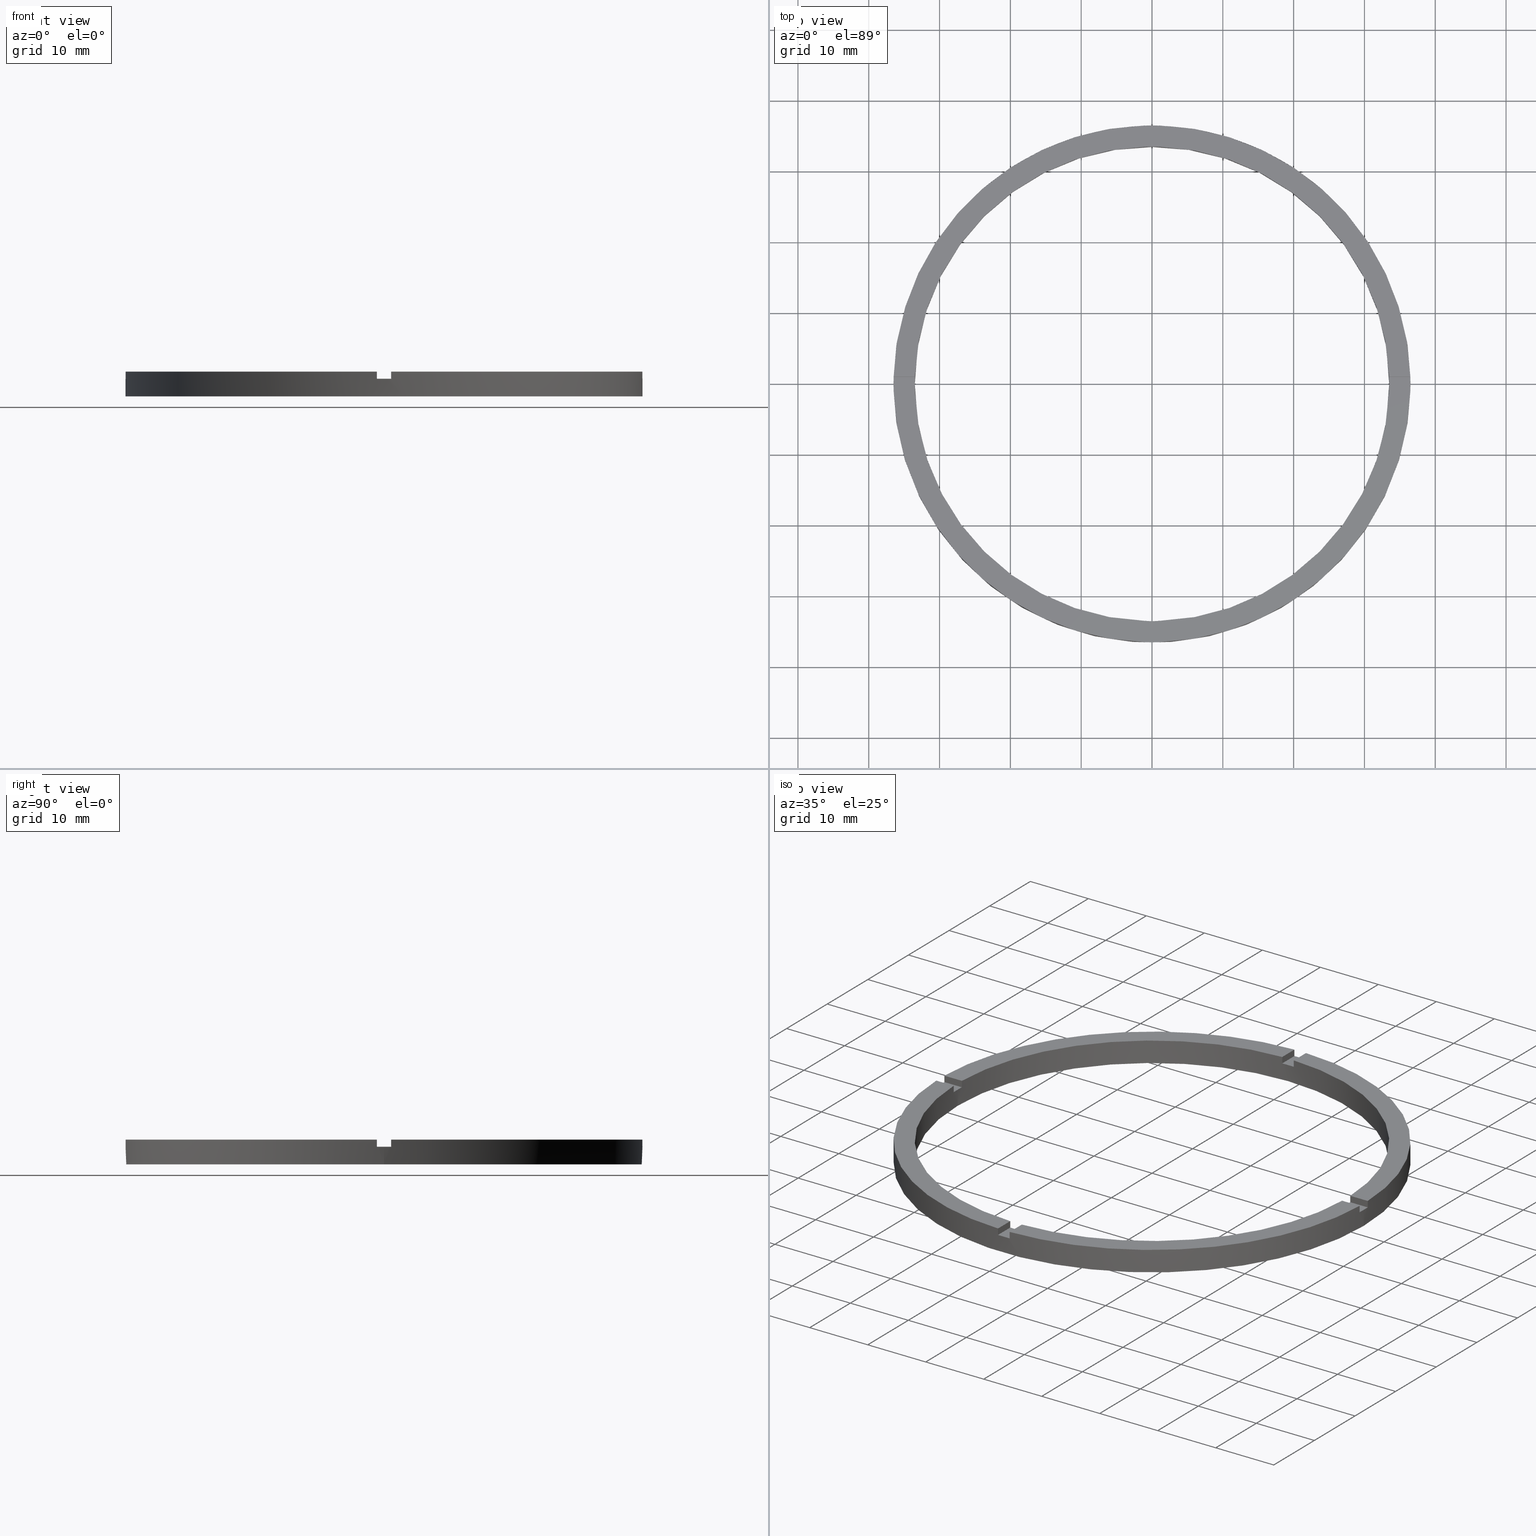
[diagram: canonical four-view strip — front | top / right | iso, engineering-drawing reading convention]
A machine part, canonical four-view strip (front | top / right | iso — engineering-drawing reading convention). The complete STEP part file that produces these views, byte-faithful:
ISO-10303-21;
HEADER;
FILE_DESCRIPTION (( 'STEP AP203' ),
    '1' );
FILE_NAME ('514151.step',
    '2024-12-26T02:42:28',
    ( 'MSI' ),
    ( '' ),
    'SwSTEP 2.0',
    'SolidWorks 2020',
    '' );
FILE_SCHEMA (( 'CONFIG_CONTROL_DESIGN' ));
ENDSEC;

DATA;
#1 = EDGE_LOOP ( 'NONE', ( #404, #175, #655, #636 ) ) ;
#2 = CARTESIAN_POINT ( 'NONE',  ( 0.000000000000000000, 0.000000000000000000, 3.500000000000000000 ) ) ;
#3 = VERTEX_POINT ( 'NONE', #468 ) ;
#4 = EDGE_CURVE ( 'NONE', #120, #640, #110, .T. ) ;
#5 = CC_DESIGN_APPROVAL ( #291, ( #672 ) ) ;
#6 = EDGE_CURVE ( 'NONE', #155, #274, #370, .T. ) ;
#7 = ORIENTED_EDGE ( 'NONE', *, *, #436, .F. ) ;
#8 = VERTEX_POINT ( 'NONE', #79 ) ;
#9 = EDGE_LOOP ( 'NONE', ( #516, #496, #498, #127 ) ) ;
#10 = PLANE ( 'NONE',  #589 ) ;
#11 = VERTEX_POINT ( 'NONE', #29 ) ;
#12 = AXIS2_PLACEMENT_3D ( 'NONE', #181, #567, #645 ) ;
#13 = DIRECTION ( 'NONE',  ( 1.000000000000000000, 0.000000000000000000, 0.000000000000000000 ) ) ;
#14 = ORIENTED_EDGE ( 'NONE', *, *, #393, .F. ) ;
#15 = ORIENTED_EDGE ( 'NONE', *, *, #722, .T. ) ;
#16 = EDGE_LOOP ( 'NONE', ( #431, #126, #638, #614 ) ) ;
#17 = CARTESIAN_POINT ( 'NONE',  ( 36.50000000000000000, 4.469960816887838430E-15, 2.500000000000000000 ) ) ;
#18 = ORIENTED_EDGE ( 'NONE', *, *, #322, .T. ) ;
#19 = CARTESIAN_POINT ( 'NONE',  ( 0.000000000000000000, 0.000000000000000000, 2.500000000000000000 ) ) ;
#20 = CARTESIAN_POINT ( 'NONE',  ( -26.50000000000018474, -1.000000000000025313, 2.500000000000000000 ) ) ;
#21 = AXIS2_PLACEMENT_3D ( 'NONE', #97, #594, #628 ) ;
#22 = CARTESIAN_POINT ( 'NONE',  ( 33.48507130050644065, -1.000000000000157874, 2.500000000000000000 ) ) ;
#23 = DIRECTION ( 'NONE',  ( 1.000000000000000000, -0.000000000000000000, 0.000000000000000000 ) ) ;
#24 = DIRECTION ( 'NONE',  ( -1.000000000000000000, -6.505213034913025371E-17, -0.000000000000000000 ) ) ;
#25 = AXIS2_PLACEMENT_3D ( 'NONE', #667, #234, #545 ) ;
#26 = CARTESIAN_POINT ( 'NONE',  ( -26.50000000000018474, 0.9999999999999746869, 2.500000000000000000 ) ) ;
#27 = DIRECTION ( 'NONE',  ( 0.000000000000000000, 0.000000000000000000, 1.000000000000000000 ) ) ;
#28 = CARTESIAN_POINT ( 'NONE',  ( -1.000000000000025091, 33.48507130050644065, 2.500000000000000000 ) ) ;
#29 = CARTESIAN_POINT ( 'NONE',  ( -33.50000000000000000, 0.000000000000000000, 2.500000000000000000 ) ) ;
#30 = AXIS2_PLACEMENT_3D ( 'NONE', #152, #579, #150 ) ;
#31 = DIRECTION ( 'NONE',  ( -0.000000000000000000, -0.000000000000000000, -1.000000000000000000 ) ) ;
#32 = DIRECTION ( 'NONE',  ( 0.000000000000000000, -0.000000000000000000, 1.000000000000000000 ) ) ;
#33 = ADVANCED_FACE ( 'NONE', ( #362 ), #81, .T. ) ;
#34 = DIRECTION ( 'NONE',  ( 0.000000000000000000, 0.000000000000000000, 1.000000000000000000 ) ) ;
#35 = EDGE_CURVE ( 'NONE', #629, #782, #618, .T. ) ;
#36 = EDGE_CURVE ( 'NONE', #422, #3, #96, .T. ) ;
#37 = CARTESIAN_POINT ( 'NONE',  ( 0.000000000000000000, 0.000000000000000000, 2.500000000000000000 ) ) ;
#38 = CARTESIAN_POINT ( 'NONE',  ( 36.48629879831606360, 0.9999999999998423483, 3.500000000000000000 ) ) ;
#39 = DIRECTION ( 'NONE',  ( -0.000000000000000000, -0.000000000000000000, -1.000000000000000000 ) ) ;
#40 = CARTESIAN_POINT ( 'NONE',  ( 0.000000000000000000, 0.000000000000000000, 2.500000000000000000 ) ) ;
#41 = EDGE_CURVE ( 'NONE', #493, #378, #603, .T. ) ;
#42 = ADVANCED_FACE ( 'NONE', ( #621 ), #515, .F. ) ;
#43 = CARTESIAN_POINT ( 'NONE',  ( 0.000000000000000000, 0.000000000000000000, 3.500000000000000000 ) ) ;
#44 = CARTESIAN_POINT ( 'NONE',  ( 0.9999999999998400169, -36.48629879831606360, 3.500000000000000000 ) ) ;
#45 = DIRECTION ( 'NONE',  ( 1.000000000000000000, 0.000000000000000000, -0.000000000000000000 ) ) ;
#46 = DIRECTION ( 'NONE',  ( 0.000000000000000000, 0.000000000000000000, 1.000000000000000000 ) ) ;
#47 = DIRECTION ( 'NONE',  ( -1.301042606982605074E-16, 1.000000000000000000, -0.000000000000000000 ) ) ;
#48 = FACE_OUTER_BOUND ( 'NONE', #648, .T. ) ;
#49 = DIRECTION ( 'NONE',  ( 0.000000000000000000, 0.000000000000000000, 1.000000000000000000 ) ) ;
#50 = VECTOR ( 'NONE', #24, 1000.000000000000000 ) ;
#51 = AXIS2_PLACEMENT_3D ( 'NONE', #734, #57, #553 ) ;
#52 = CIRCLE ( 'NONE', #355, 33.50000000000000000 ) ;
#53 = FACE_OUTER_BOUND ( 'NONE', #381, .T. ) ;
#54 = CYLINDRICAL_SURFACE ( 'NONE', #286, 33.50000000000000000 ) ;
#55 = AXIS2_PLACEMENT_3D ( 'NONE', #357, #781, #561 ) ;
#56 = LINE ( 'NONE', #507, #330 ) ;
#57 = DIRECTION ( 'NONE',  ( 6.505213034913025371E-17, -1.000000000000000000, 0.000000000000000000 ) ) ;
#58 = LINE ( 'NONE', #754, #80 ) ;
#59 = VECTOR ( 'NONE', #173, 1000.000000000000000 ) ;
#60 = LINE ( 'NONE', #306, #329 ) ;
#61 = DIRECTION ( 'NONE',  ( 0.000000000000000000, 0.000000000000000000, 1.000000000000000000 ) ) ;
#62 = EDGE_CURVE ( 'NONE', #382, #163, #605, .T. ) ;
#63 = DIRECTION ( 'NONE',  ( -1.000000000000000000, -1.301042606982605074E-16, 0.000000000000000000 ) ) ;
#64 = LINE ( 'NONE', #592, #323 ) ;
#65 = PERSON_AND_ORGANIZATION_ROLE ( 'design_owner' ) ;
#66 = VECTOR ( 'NONE', #705, 1000.000000000000000 ) ;
#67 = DIRECTION ( 'NONE',  ( -1.301042606982605074E-16, 1.000000000000000000, 0.000000000000000000 ) ) ;
#68 = DIRECTION ( 'NONE',  ( 1.000000000000000000, 0.000000000000000000, 0.000000000000000000 ) ) ;
#69 = FACE_OUTER_BOUND ( 'NONE', #538, .T. ) ;
#70 = LINE ( 'NONE', #678, #593 ) ;
#71 = FACE_BOUND ( 'NONE', #625, .T. ) ;
#72 = LINE ( 'NONE', #708, #586 ) ;
#73 = CARTESIAN_POINT ( 'NONE',  ( 0.9999999999999749090, 33.48507130050644776, 3.500000000000000000 ) ) ;
#74 = VERTEX_POINT ( 'NONE', #255 ) ;
#75 = CARTESIAN_POINT ( 'NONE',  ( -1.000000000000160094, -36.48629879831604939, 3.500000000000000000 ) ) ;
#76 = AXIS2_PLACEMENT_3D ( 'NONE', #289, #130, #340 ) ;
#77 = LINE ( 'NONE', #164, #66 ) ;
#78 = FACE_OUTER_BOUND ( 'NONE', #261, .T. ) ;
#79 = CARTESIAN_POINT ( 'NONE',  ( 33.50000000000000000, 4.102566777143633774E-15, 0.000000000000000000 ) ) ;
#80 = VECTOR ( 'NONE', #463, 1000.000000000000000 ) ;
#81 = CYLINDRICAL_SURFACE ( 'NONE', #12, 36.50000000000000000 ) ;
#82 = EDGE_CURVE ( 'NONE', #666, #493, #104, .T. ) ;
#83 = CIRCLE ( 'NONE', #500, 36.50000000000000000 ) ;
#84 = DIRECTION ( 'NONE',  ( 0.000000000000000000, 0.000000000000000000, 1.000000000000000000 ) ) ;
#85 = DIRECTION ( 'NONE',  ( -0.000000000000000000, -0.000000000000000000, -1.000000000000000000 ) ) ;
#86 = CYLINDRICAL_SURFACE ( 'NONE', #717, 33.50000000000000000 ) ;
#87 = CIRCLE ( 'NONE', #221, 33.50000000000000000 ) ;
#88 = CARTESIAN_POINT ( 'NONE',  ( -36.48629879831605649, -1.000000000000027311, 2.500000000000000000 ) ) ;
#89 = LINE ( 'NONE', #669, #356 ) ;
#90 = ADVANCED_FACE ( 'NONE', ( #128 ), #315, .F. ) ;
#91 = LINE ( 'NONE', #336, #354 ) ;
#92 = CARTESIAN_POINT ( 'NONE',  ( 0.9999999999998395728, -33.48507130050644776, 3.500000000000000000 ) ) ;
#93 = LINE ( 'NONE', #439, #95 ) ;
#94 = VECTOR ( 'NONE', #673, 1000.000000000000000 ) ;
#95 = VECTOR ( 'NONE', #479, 1000.000000000000000 ) ;
#96 = LINE ( 'NONE', #92, #341 ) ;
#97 = CARTESIAN_POINT ( 'NONE',  ( 0.000000000000000000, 0.000000000000000000, 2.500000000000000000 ) ) ;
#98 = DIRECTION ( 'NONE',  ( 1.301042606982605074E-16, -1.000000000000000000, 0.000000000000000000 ) ) ;
#99 = VECTOR ( 'NONE', #227, 1000.000000000000000 ) ;
#100 = ORIENTED_EDGE ( 'NONE', *, *, #316, .F. ) ;
#101 = VECTOR ( 'NONE', #320, 1000.000000000000000 ) ;
#102 = ORIENTED_EDGE ( 'NONE', *, *, #743, .T. ) ;
#103 = ADVANCED_FACE ( 'NONE', ( #78 ), #554, .F. ) ;
#104 = LINE ( 'NONE', #701, #386 ) ;
#105 = ORIENTED_EDGE ( 'NONE', *, *, #82, .F. ) ;
#106 = CIRCLE ( 'NONE', #735, 36.50000000000000000 ) ;
#107 = ORIENTED_EDGE ( 'NONE', *, *, #571, .T. ) ;
#108 = APPROVAL_STATUS ( 'not_yet_approved' ) ;
#109 = CARTESIAN_POINT ( 'NONE',  ( -26.50000000000018474, 0.9999999999999746869, 3.500000000000000000 ) ) ;
#110 = LINE ( 'NONE', #417, #99 ) ;
#111 = ORIENTED_EDGE ( 'NONE', *, *, #418, .T. ) ;
#112 = VECTOR ( 'NONE', #85, 1000.000000000000000 ) ;
#113 = ORIENTED_EDGE ( 'NONE', *, *, #183, .T. ) ;
#114 = LINE ( 'NONE', #541, #94 ) ;
#115 = ORIENTED_EDGE ( 'NONE', *, *, #661, .T. ) ;
#116 = DIRECTION ( 'NONE',  ( 1.000000000000000000, 0.000000000000000000, -0.000000000000000000 ) ) ;
#117 = AXIS2_PLACEMENT_3D ( 'NONE', #435, #32, #575 ) ;
#118 = CC_DESIGN_APPROVAL ( #596, ( #457 ) ) ;
#119 = ORIENTED_EDGE ( 'NONE', *, *, #418, .F. ) ;
#120 = VERTEX_POINT ( 'NONE', #304 ) ;
#121 = DIRECTION ( 'NONE',  ( 0.000000000000000000, 0.000000000000000000, 1.000000000000000000 ) ) ;
#122 = VECTOR ( 'NONE', #410, 1000.000000000000000 ) ;
#123 = ORIENTED_EDGE ( 'NONE', *, *, #263, .T. ) ;
#124 = EDGE_CURVE ( 'NONE', #74, #382, #391, .T. ) ;
#125 = CC_DESIGN_PERSON_AND_ORGANIZATION_ASSIGNMENT ( #220, #530, ( #672 ) ) ;
#126 = ORIENTED_EDGE ( 'NONE', *, *, #292, .T. ) ;
#127 = ORIENTED_EDGE ( 'NONE', *, *, #710, .F. ) ;
#128 = FACE_OUTER_BOUND ( 'NONE', #1, .T. ) ;
#129 = ORIENTED_EDGE ( 'NONE', *, *, #137, .F. ) ;
#130 = DIRECTION ( 'NONE',  ( -6.505213034913025371E-17, 1.000000000000000000, 0.000000000000000000 ) ) ;
#131 = VERTEX_POINT ( 'NONE', #22 ) ;
#132 = VERTEX_POINT ( 'NONE', #730 ) ;
#133 = DIRECTION ( 'NONE',  ( -1.000000000000000000, -1.951563910473907735E-16, 0.000000000000000000 ) ) ;
#134 = VECTOR ( 'NONE', #742, 1000.000000000000000 ) ;
#135 = CARTESIAN_POINT ( 'NONE',  ( 0.000000000000000000, 0.000000000000000000, 3.500000000000000000 ) ) ;
#136 = VECTOR ( 'NONE', #133, 1000.000000000000000 ) ;
#137 = EDGE_CURVE ( 'NONE', #282, #640, #635, .T. ) ;
#138 = DIRECTION ( 'NONE',  ( 0.000000000000000000, 0.000000000000000000, 1.000000000000000000 ) ) ;
#139 = LINE ( 'NONE', #109, #136 ) ;
#140 = EDGE_LOOP ( 'NONE', ( #441, #264, #111, #375, #177, #449, #689, #100, #518, #180, #776, #145 ) ) ;
#141 = CARTESIAN_POINT ( 'NONE',  ( -36.48629879831605649, -1.000000000000027311, 3.500000000000000000 ) ) ;
#142 = ADVANCED_FACE ( 'NONE', ( #344 ), #413, .T. ) ;
#143 = VERTEX_POINT ( 'NONE', #388 ) ;
#144 = EDGE_LOOP ( 'NONE', ( #686, #156, #438, #421 ) ) ;
#145 = ORIENTED_EDGE ( 'NONE', *, *, #170, .T. ) ;
#146 = CARTESIAN_POINT ( 'NONE',  ( 36.48629879831604939, -1.000000000000157652, 3.500000000000000000 ) ) ;
#147 = CARTESIAN_POINT ( 'NONE',  ( 0.000000000000000000, 0.000000000000000000, 2.500000000000000000 ) ) ;
#148 = ORIENTED_EDGE ( 'NONE', *, *, #467, .T. ) ;
#149 =( GEOMETRIC_REPRESENTATION_CONTEXT ( 3 ) GLOBAL_UNCERTAINTY_ASSIGNED_CONTEXT ( ( #568 ) ) GLOBAL_UNIT_ASSIGNED_CONTEXT ( ( #469, #172, #560 ) ) REPRESENTATION_CONTEXT ( 'NONE', 'WORKASPACE' ) );
#150 = DIRECTION ( 'NONE',  ( 1.000000000000000000, 0.000000000000000000, -0.000000000000000000 ) ) ;
#151 = DIRECTION ( 'NONE',  ( 0.000000000000000000, 0.000000000000000000, 1.000000000000000000 ) ) ;
#152 = CARTESIAN_POINT ( 'NONE',  ( 0.000000000000000000, 0.000000000000000000, 3.500000000000000000 ) ) ;
#153 = DESIGN_CONTEXT ( 'detailed design', #401, 'design' ) ;
#154 = CARTESIAN_POINT ( 'NONE',  ( 0.000000000000000000, 0.000000000000000000, 0.000000000000000000 ) ) ;
#155 = VERTEX_POINT ( 'NONE', #265 ) ;
#156 = ORIENTED_EDGE ( 'NONE', *, *, #702, .T. ) ;
#157 = DIRECTION ( 'NONE',  ( 1.000000000000000000, 0.000000000000000000, 0.000000000000000000 ) ) ;
#158 = CARTESIAN_POINT ( 'NONE',  ( 33.50000000000000000, 4.102566777143633774E-15, 2.500000000000000000 ) ) ;
#159 = AXIS2_PLACEMENT_3D ( 'NONE', #514, #706, #641 ) ;
#160 = CARTESIAN_POINT ( 'NONE',  ( 0.000000000000000000, 0.000000000000000000, 2.500000000000000000 ) ) ;
#161 = FACE_OUTER_BOUND ( 'NONE', #403, .T. ) ;
#162 = CARTESIAN_POINT ( 'NONE',  ( 0.000000000000000000, 0.000000000000000000, 0.000000000000000000 ) ) ;
#163 = VERTEX_POINT ( 'NONE', #302 ) ;
#164 = CARTESIAN_POINT ( 'NONE',  ( 36.50000000000000000, 4.469960816887838430E-15, 3.500000000000000000 ) ) ;
#165 = CARTESIAN_POINT ( 'NONE',  ( 0.000000000000000000, 0.000000000000000000, 3.500000000000000000 ) ) ;
#166 = DIRECTION ( 'NONE',  ( 1.000000000000000000, 0.000000000000000000, -0.000000000000000000 ) ) ;
#167 = APPROVAL ( #312, 'δָ��' ) ;
#168 = VECTOR ( 'NONE', #577, 1000.000000000000000 ) ;
#169 = LINE ( 'NONE', #217, #168 ) ;
#170 = EDGE_CURVE ( 'NONE', #640, #282, #106, .T. ) ;
#171 = VECTOR ( 'NONE', #664, 1000.000000000000000 ) ;
#172 =( NAMED_UNIT ( * ) PLANE_ANGLE_UNIT ( ) SI_UNIT ( $, .RADIAN. ) );
#173 = DIRECTION ( 'NONE',  ( 0.000000000000000000, 0.000000000000000000, 1.000000000000000000 ) ) ;
#174 = LINE ( 'NONE', #300, #440 ) ;
#175 = ORIENTED_EDGE ( 'NONE', *, *, #41, .T. ) ;
#176 = CARTESIAN_POINT ( 'NONE',  ( 0.000000000000000000, 0.000000000000000000, 2.500000000000000000 ) ) ;
#177 = ORIENTED_EDGE ( 'NONE', *, *, #195, .T. ) ;
#178 = CARTESIAN_POINT ( 'NONE',  ( 0.000000000000000000, 0.000000000000000000, 2.500000000000000000 ) ) ;
#179 = EDGE_CURVE ( 'NONE', #271, #358, #626, .T. ) ;
#180 = ORIENTED_EDGE ( 'NONE', *, *, #275, .F. ) ;
#181 = CARTESIAN_POINT ( 'NONE',  ( 0.000000000000000000, 0.000000000000000000, 3.500000000000000000 ) ) ;
#182 = ORIENTED_EDGE ( 'NONE', *, *, #467, .F. ) ;
#183 = EDGE_CURVE ( 'NONE', #448, #358, #348, .T. ) ;
#184 = ORIENTED_EDGE ( 'NONE', *, *, #327, .T. ) ;
#185 = CARTESIAN_POINT ( 'NONE',  ( 0.9999999999999749090, 36.48629879831605649, 2.500000000000000000 ) ) ;
#186 = ORIENTED_EDGE ( 'NONE', *, *, #317, .T. ) ;
#187 = ORIENTED_EDGE ( 'NONE', *, *, #36, .T. ) ;
#188 = ORIENTED_EDGE ( 'NONE', *, *, #208, .T. ) ;
#189 = EDGE_LOOP ( 'NONE', ( #447, #695, #741, #451, #696, #617, #364, #18, #453, #647, #272, #398 ) ) ;
#190 = PLANE ( 'NONE',  #305 ) ;
#191 = ORIENTED_EDGE ( 'NONE', *, *, #137, .T. ) ;
#192 = ADVANCED_FACE ( 'NONE', ( #389 ), #429, .T. ) ;
#193 = AXIS2_PLACEMENT_3D ( 'NONE', #698, #313, #67 ) ;
#194 = ORIENTED_EDGE ( 'NONE', *, *, #4, .F. ) ;
#195 = EDGE_CURVE ( 'NONE', #527, #163, #606, .T. ) ;
#196 = PLANE ( 'NONE',  #193 ) ;
#197 = AXIS2_PLACEMENT_3D ( 'NONE', #154, #599, #680 ) ;
#198 = CARTESIAN_POINT ( 'NONE',  ( 0.9999999999999749090, 33.48507130050644776, 3.500000000000000000 ) ) ;
#199 = DIRECTION ( 'NONE',  ( 0.000000000000000000, 0.000000000000000000, 1.000000000000000000 ) ) ;
#200 = AXIS2_PLACEMENT_3D ( 'NONE', #281, #138, #45 ) ;
#201 = CARTESIAN_POINT ( 'NONE',  ( -33.48507130050644065, -1.000000000000026645, 2.500000000000000000 ) ) ;
#202 = CC_DESIGN_APPROVAL ( #167, ( #736 ) ) ;
#203 = CARTESIAN_POINT ( 'NONE',  ( -33.48507130050644776, 0.9999999999999733546, 3.500000000000000000 ) ) ;
#204 = DIRECTION ( 'NONE',  ( 0.000000000000000000, 0.000000000000000000, 1.000000000000000000 ) ) ;
#205 = EDGE_CURVE ( 'NONE', #412, #608, #83, .T. ) ;
#206 = EDGE_CURVE ( 'NONE', #11, #543, #349, .T. ) ;
#207 = DIRECTION ( 'NONE',  ( 1.000000000000000000, 0.000000000000000000, 0.000000000000000000 ) ) ;
#208 = EDGE_CURVE ( 'NONE', #274, #358, #114, .T. ) ;
#209 = EDGE_CURVE ( 'NONE', #238, #8, #87, .T. ) ;
#210 = CARTESIAN_POINT ( 'NONE',  ( 0.000000000000000000, 0.000000000000000000, 3.500000000000000000 ) ) ;
#211 = MANIFOLD_SOLID_BREP ( '�г�-����1', #241 ) ;
#212 = CARTESIAN_POINT ( 'NONE',  ( -26.50000000000018474, 0.9999999999999746869, 2.500000000000000000 ) ) ;
#213 = DIRECTION ( 'NONE',  ( 0.000000000000000000, 0.000000000000000000, 1.000000000000000000 ) ) ;
#214 = AXIS2_PLACEMENT_3D ( 'NONE', #216, #739, #513 ) ;
#215 = DIRECTION ( 'NONE',  ( 0.000000000000000000, 0.000000000000000000, 1.000000000000000000 ) ) ;
#216 = CARTESIAN_POINT ( 'NONE',  ( 0.000000000000000000, 0.000000000000000000, 3.500000000000000000 ) ) ;
#217 = CARTESIAN_POINT ( 'NONE',  ( 36.48629879831604939, -1.000000000000157652, 3.500000000000000000 ) ) ;
#218 = DIRECTION ( 'NONE',  ( 1.301042606982605074E-16, -1.000000000000000000, 0.000000000000000000 ) ) ;
#219 = CARTESIAN_POINT ( 'NONE',  ( -1.000000000000025091, 36.48629879831605649, 3.500000000000000000 ) ) ;
#220 = PERSON_AND_ORGANIZATION ( #464, #251 ) ;
#221 = AXIS2_PLACEMENT_3D ( 'NONE', #573, #425, #715 ) ;
#222 = DIRECTION ( 'NONE',  ( -0.000000000000000000, -0.000000000000000000, -1.000000000000000000 ) ) ;
#223 = PLANE ( 'NONE',  #200 ) ;
#224 = PERSON_AND_ORGANIZATION ( #464, #251 ) ;
#225 = AXIS2_PLACEMENT_3D ( 'NONE', #248, #445, #68 ) ;
#226 = COORDINATED_UNIVERSAL_TIME_OFFSET ( 8, 0, .AHEAD. ) ;
#227 = DIRECTION ( 'NONE',  ( -0.000000000000000000, -0.000000000000000000, -1.000000000000000000 ) ) ;
#228 = APPROVAL_STATUS ( 'not_yet_approved' ) ;
#229 = CARTESIAN_POINT ( 'NONE',  ( 0.000000000000000000, 0.000000000000000000, 2.500000000000000000 ) ) ;
#230 = ADVANCED_FACE ( 'NONE', ( #610 ), #190, .T. ) ;
#231 = CC_DESIGN_PERSON_AND_ORGANIZATION_ASSIGNMENT ( #728, #535, ( #457 ) ) ;
#232 = EDGE_CURVE ( 'NONE', #540, #279, #91, .T. ) ;
#233 = PERSON_AND_ORGANIZATION_ROLE ( 'creator' ) ;
#234 = DIRECTION ( 'NONE',  ( 0.000000000000000000, 0.000000000000000000, 1.000000000000000000 ) ) ;
#235 = DATE_AND_TIME ( #745, #237 ) ;
#236 = PLANE ( 'NONE',  #76 ) ;
#237 = LOCAL_TIME ( 10, 42, 28.00000000000000000, #226 ) ;
#238 = VERTEX_POINT ( 'NONE', #531 ) ;
#239 = DATE_AND_TIME ( #499, #487 ) ;
#240 = CARTESIAN_POINT ( 'NONE',  ( -1.000000000000160094, -36.48629879831604939, 3.500000000000000000 ) ) ;
#241 = CLOSED_SHELL ( 'NONE', ( #582, #350, #572, #363, #566, #276, #709, #33, #471, #774, #765, #142, #654, #42, #192, #649, #103, #719, #90, #757, #230 ) ) ;
#242 = APPROVAL_PERSON_ORGANIZATION ( #224, #596, #332 ) ;
#243 = ORIENTED_EDGE ( 'NONE', *, *, #766, .F. ) ;
#244 = EDGE_CURVE ( 'NONE', #666, #771, #380, .T. ) ;
#245 = EDGE_CURVE ( 'NONE', #422, #132, #426, .T. ) ;
#246 = SHAPE_DEFINITION_REPRESENTATION ( #396, #443 ) ;
#247 = DIRECTION ( 'NONE',  ( 1.000000000000000000, 0.000000000000000000, 0.000000000000000000 ) ) ;
#248 = CARTESIAN_POINT ( 'NONE',  ( 0.000000000000000000, 0.000000000000000000, 2.500000000000000000 ) ) ;
#249 = APPROVAL_DATE_TIME ( #239, #291 ) ;
#250 = CARTESIAN_POINT ( 'NONE',  ( -33.48507130050644065, -1.000000000000026645, 3.500000000000000000 ) ) ;
#251 = ORGANIZATION ( 'δָ��', 'δָ��', '' ) ;
#252 = DIRECTION ( 'NONE',  ( 0.000000000000000000, 0.000000000000000000, 1.000000000000000000 ) ) ;
#253 = CARTESIAN_POINT ( 'NONE',  ( 0.000000000000000000, 0.000000000000000000, 0.000000000000000000 ) ) ;
#254 = CARTESIAN_POINT ( 'NONE',  ( -1.000000000000025091, 26.49999999999999645, 2.500000000000000000 ) ) ;
#255 = CARTESIAN_POINT ( 'NONE',  ( -1.000000000000160538, -33.48507130050644065, 2.500000000000000000 ) ) ;
#256 = DIRECTION ( 'NONE',  ( 1.000000000000000000, 0.000000000000000000, 0.000000000000000000 ) ) ;
#257 = ORIENTED_EDGE ( 'NONE', *, *, #522, .F. ) ;
#258 = AXIS2_PLACEMENT_3D ( 'NONE', #229, #478, #662 ) ;
#259 = CARTESIAN_POINT ( 'NONE',  ( 0.000000000000000000, 0.000000000000000000, 3.500000000000000000 ) ) ;
#260 = EDGE_CURVE ( 'NONE', #274, #377, #416, .T. ) ;
#261 = EDGE_LOOP ( 'NONE', ( #182, #107, #186, #119 ) ) ;
#262 = DIRECTION ( 'NONE',  ( 1.000000000000000000, 0.000000000000000000, -0.000000000000000000 ) ) ;
#263 = EDGE_CURVE ( 'NONE', #627, #771, #139, .T. ) ;
#264 = ORIENTED_EDGE ( 'NONE', *, *, #205, .F. ) ;
#265 = CARTESIAN_POINT ( 'NONE',  ( 0.9999999999999749090, 33.48507130050644776, 2.500000000000000000 ) ) ;
#266 = EDGE_CURVE ( 'NONE', #369, #424, #419, .T. ) ;
#267 = ORIENTED_EDGE ( 'NONE', *, *, #209, .T. ) ;
#268 = DIRECTION ( 'NONE',  ( -1.951563910473907735E-16, 1.000000000000000000, 0.000000000000000000 ) ) ;
#269 = EDGE_LOOP ( 'NONE', ( #769, #129 ) ) ;
#270 = DIRECTION ( 'NONE',  ( -0.000000000000000000, -0.000000000000000000, -1.000000000000000000 ) ) ;
#271 = VERTEX_POINT ( 'NONE', #198 ) ;
#272 = ORIENTED_EDGE ( 'NONE', *, *, #716, .T. ) ;
#273 = DIRECTION ( 'NONE',  ( 1.000000000000000000, 1.951563910473907735E-16, 0.000000000000000000 ) ) ;
#274 = VERTEX_POINT ( 'NONE', #185 ) ;
#275 = EDGE_CURVE ( 'NONE', #120, #392, #670, .T. ) ;
#276 = ADVANCED_FACE ( 'NONE', ( #161 ), #223, .T. ) ;
#277 = ORIENTED_EDGE ( 'NONE', *, *, #232, .T. ) ;
#278 = CARTESIAN_POINT ( 'NONE',  ( -1.000000000000025091, 33.48507130050644065, 3.500000000000000000 ) ) ;
#279 = VERTEX_POINT ( 'NONE', #250 ) ;
#280 = CARTESIAN_POINT ( 'NONE',  ( 0.000000000000000000, 0.000000000000000000, 0.000000000000000000 ) ) ;
#281 = CARTESIAN_POINT ( 'NONE',  ( 0.000000000000000000, 0.000000000000000000, 3.500000000000000000 ) ) ;
#282 = VERTEX_POINT ( 'NONE', #297 ) ;
#283 = CARTESIAN_POINT ( 'NONE',  ( 36.48629879831604939, -1.000000000000157652, 2.500000000000000000 ) ) ;
#284 = VERTEX_POINT ( 'NONE', #146 ) ;
#285 = SECURITY_CLASSIFICATION_LEVEL ( 'unclassified' ) ;
#286 = AXIS2_PLACEMENT_3D ( 'NONE', #259, #770, #383 ) ;
#287 = CARTESIAN_POINT ( 'NONE',  ( 0.9999999999998400169, -36.48629879831606360, 3.500000000000000000 ) ) ;
#288 = CC_DESIGN_PERSON_AND_ORGANIZATION_ASSIGNMENT ( #755, #65, ( #325 ) ) ;
#289 = CARTESIAN_POINT ( 'NONE',  ( 26.49999999999998934, 0.9999999999998416822, 2.500000000000000000 ) ) ;
#290 = EDGE_CURVE ( 'NONE', #623, #627, #395, .T. ) ;
#291 = APPROVAL ( #108, 'δָ��' ) ;
#292 = EDGE_CURVE ( 'NONE', #377, #378, #681, .T. ) ;
#293 = CARTESIAN_POINT ( 'NONE',  ( 0.000000000000000000, 0.000000000000000000, 3.500000000000000000 ) ) ;
#294 = DIRECTION ( 'NONE',  ( 1.000000000000000000, 0.000000000000000000, 0.000000000000000000 ) ) ;
#295 = AXIS2_PLACEMENT_3D ( 'NONE', #462, #63, #218 ) ;
#296 = DIRECTION ( 'NONE',  ( 1.000000000000000000, 6.505213034913025371E-17, 0.000000000000000000 ) ) ;
#297 = CARTESIAN_POINT ( 'NONE',  ( 36.50000000000000000, 4.469960816887838430E-15, 0.000000000000000000 ) ) ;
#298 = DIRECTION ( 'NONE',  ( 0.000000000000000000, 0.000000000000000000, 1.000000000000000000 ) ) ;
#299 = CARTESIAN_POINT ( 'NONE',  ( 0.9999999999999749090, 26.49999999999999645, 2.500000000000000000 ) ) ;
#300 = CARTESIAN_POINT ( 'NONE',  ( 26.49999999999998934, -1.000000000000158318, 3.500000000000000000 ) ) ;
#301 = AXIS2_PLACEMENT_3D ( 'NONE', #210, #84, #506 ) ;
#302 = CARTESIAN_POINT ( 'NONE',  ( 0.9999999999998400169, -36.48629879831606360, 2.500000000000000000 ) ) ;
#303 = CARTESIAN_POINT ( 'NONE',  ( 0.000000000000000000, 0.000000000000000000, 2.500000000000000000 ) ) ;
#304 = CARTESIAN_POINT ( 'NONE',  ( -36.50000000000000000, 0.000000000000000000, 2.500000000000000000 ) ) ;
#305 = AXIS2_PLACEMENT_3D ( 'NONE', #475, #473, #581 ) ;
#306 = CARTESIAN_POINT ( 'NONE',  ( -26.50000000000018474, -1.000000000000025313, 2.500000000000000000 ) ) ;
#307 = CARTESIAN_POINT ( 'NONE',  ( 0.9999999999999749090, 26.49999999999999645, 3.500000000000000000 ) ) ;
#308 = AXIS2_PLACEMENT_3D ( 'NONE', #147, #204, #256 ) ;
#309 = APPLICATION_PROTOCOL_DEFINITION ( 'international standard', 'config_control_design', 1994, #517 ) ;
#310 = CARTESIAN_POINT ( 'NONE',  ( 0.000000000000000000, 0.000000000000000000, 0.000000000000000000 ) ) ;
#311 = CC_DESIGN_PERSON_AND_ORGANIZATION_ASSIGNMENT ( #477, #233, ( #736 ) ) ;
#312 = APPROVAL_STATUS ( 'not_yet_approved' ) ;
#313 = DIRECTION ( 'NONE',  ( 1.000000000000000000, 1.301042606982605074E-16, 0.000000000000000000 ) ) ;
#314 = DIRECTION ( 'NONE',  ( -1.000000000000000000, 0.000000000000000000, 0.000000000000000000 ) ) ;
#315 = PLANE ( 'NONE',  #539 ) ;
#316 = EDGE_CURVE ( 'NONE', #540, #424, #675, .T. ) ;
#317 = EDGE_CURVE ( 'NONE', #132, #284, #174, .T. ) ;
#318 = DIRECTION ( 'NONE',  ( -0.000000000000000000, -0.000000000000000000, -1.000000000000000000 ) ) ;
#319 = FACE_OUTER_BOUND ( 'NONE', #600, .T. ) ;
#320 = DIRECTION ( 'NONE',  ( -0.000000000000000000, -0.000000000000000000, -1.000000000000000000 ) ) ;
#321 = CIRCLE ( 'NONE', #214, 36.50000000000000000 ) ;
#322 = EDGE_CURVE ( 'NONE', #493, #627, #677, .T. ) ;
#323 = VECTOR ( 'NONE', #298, 1000.000000000000000 ) ;
#324 = CARTESIAN_POINT ( 'NONE',  ( -1.000000000000025091, 36.48629879831605649, 3.500000000000000000 ) ) ;
#325 = PRODUCT ( '514151', '514151', '', ( #524 ) ) ;
#326 = VECTOR ( 'NONE', #31, 1000.000000000000000 ) ;
#327 = EDGE_CURVE ( 'NONE', #527, #422, #685, .T. ) ;
#328 = CARTESIAN_POINT ( 'NONE',  ( 0.9999999999999749090, 26.49999999999999645, 2.500000000000000000 ) ) ;
#329 = VECTOR ( 'NONE', #556, 1000.000000000000000 ) ;
#330 = VECTOR ( 'NONE', #558, 1000.000000000000000 ) ;
#331 = CIRCLE ( 'NONE', #21, 33.50000000000000000 ) ;
#332 = APPROVAL_ROLE ( '' ) ;
#333 = AXIS2_PLACEMENT_3D ( 'NONE', #569, #732, #262 ) ;
#334 = FACE_OUTER_BOUND ( 'NONE', #372, .T. ) ;
#335 = APPROVAL_ROLE ( '' ) ;
#336 = CARTESIAN_POINT ( 'NONE',  ( -26.50000000000018474, -1.000000000000025313, 3.500000000000000000 ) ) ;
#337 = LINE ( 'NONE', #324, #598 ) ;
#338 = FACE_OUTER_BOUND ( 'NONE', #760, .T. ) ;
#339 = CIRCLE ( 'NONE', #301, 33.50000000000000000 ) ;
#340 = DIRECTION ( 'NONE',  ( -1.000000000000000000, -6.505213034913025371E-17, 0.000000000000000000 ) ) ;
#341 = VECTOR ( 'NONE', #222, 1000.000000000000000 ) ;
#342 = CIRCLE ( 'NONE', #308, 36.50000000000000000 ) ;
#343 = DIRECTION ( 'NONE',  ( 1.000000000000000000, 0.000000000000000000, 0.000000000000000000 ) ) ;
#344 = FACE_OUTER_BOUND ( 'NONE', #529, .T. ) ;
#345 = LINE ( 'NONE', #704, #326 ) ;
#346 = CARTESIAN_POINT ( 'NONE',  ( -36.48629879831605649, -1.000000000000027311, 3.500000000000000000 ) ) ;
#347 = AXIS2_PLACEMENT_3D ( 'NONE', #293, #34, #294 ) ;
#348 = CIRCLE ( 'NONE', #414, 36.50000000000000000 ) ;
#349 = CIRCLE ( 'NONE', #644, 33.50000000000000000 ) ;
#350 = ADVANCED_FACE ( 'NONE', ( #430 ), #682, .T. ) ;
#351 = ORIENTED_EDGE ( 'NONE', *, *, #716, .F. ) ;
#352 = LINE ( 'NONE', #368, #613 ) ;
#353 = DIRECTION ( 'NONE',  ( 0.000000000000000000, 0.000000000000000000, 1.000000000000000000 ) ) ;
#354 = VECTOR ( 'NONE', #525, 1000.000000000000000 ) ;
#355 = AXIS2_PLACEMENT_3D ( 'NONE', #2, #252, #456 ) ;
#356 = VECTOR ( 'NONE', #296, 1000.000000000000000 ) ;
#357 = CARTESIAN_POINT ( 'NONE',  ( 0.000000000000000000, 0.000000000000000000, 2.500000000000000000 ) ) ;
#358 = VERTEX_POINT ( 'NONE', #718 ) ;
#359 = LINE ( 'NONE', #583, #122 ) ;
#360 = ORIENTED_EDGE ( 'NONE', *, *, #601, .T. ) ;
#361 = ORIENTED_EDGE ( 'NONE', *, *, #266, .T. ) ;
#362 = FACE_OUTER_BOUND ( 'NONE', #140, .T. ) ;
#363 = ADVANCED_FACE ( 'NONE', ( #428 ), #773, .T. ) ;
#364 = ORIENTED_EDGE ( 'NONE', *, *, #41, .F. ) ;
#365 = DIRECTION ( 'NONE',  ( 0.000000000000000000, 0.000000000000000000, 1.000000000000000000 ) ) ;
#366 = ORIENTED_EDGE ( 'NONE', *, *, #36, .F. ) ;
#367 = ORIENTED_EDGE ( 'NONE', *, *, #245, .T. ) ;
#368 = CARTESIAN_POINT ( 'NONE',  ( 0.9999999999998386846, -26.50000000000017764, 2.500000000000000000 ) ) ;
#369 = VERTEX_POINT ( 'NONE', #519 ) ;
#370 = LINE ( 'NONE', #328, #642 ) ;
#371 = DIRECTION ( 'NONE',  ( -1.000000000000000000, -6.505213034913025371E-17, -0.000000000000000000 ) ) ;
#372 = EDGE_LOOP ( 'NONE', ( #277, #526, #384, #7 ) ) ;
#373 = CC_DESIGN_SECURITY_CLASSIFICATION ( #672, ( #457 ) ) ;
#374 = EDGE_CURVE ( 'NONE', #623, #11, #691, .T. ) ;
#375 = ORIENTED_EDGE ( 'NONE', *, *, #660, .F. ) ;
#376 = DIRECTION ( 'NONE',  ( -0.000000000000000000, -1.000000000000000000, -0.000000000000000000 ) ) ;
#377 = VERTEX_POINT ( 'NONE', #536 ) ;
#378 = VERTEX_POINT ( 'NONE', #28 ) ;
#379 = DIRECTION ( 'NONE',  ( 1.000000000000000000, 0.000000000000000000, 0.000000000000000000 ) ) ;
#380 = CIRCLE ( 'NONE', #455, 36.50000000000000000 ) ;
#381 = EDGE_LOOP ( 'NONE', ( #546, #360, #780, #351, #542, #385, #777, #616, #15, #366, #367, #632 ) ) ;
#382 = VERTEX_POINT ( 'NONE', #767 ) ;
#383 = DIRECTION ( 'NONE',  ( -1.000000000000000000, 0.000000000000000000, 0.000000000000000000 ) ) ;
#384 = ORIENTED_EDGE ( 'NONE', *, *, #563, .F. ) ;
#385 = ORIENTED_EDGE ( 'NONE', *, *, #458, .F. ) ;
#386 = VECTOR ( 'NONE', #687, 1000.000000000000000 ) ;
#387 = ORIENTED_EDGE ( 'NONE', *, *, #660, .T. ) ;
#388 = CARTESIAN_POINT ( 'NONE',  ( 33.48507130050644776, 0.9999999999998421263, 3.500000000000000000 ) ) ;
#389 = FACE_OUTER_BOUND ( 'NONE', #639, .T. ) ;
#390 = ORIENTED_EDGE ( 'NONE', *, *, #316, .T. ) ;
#391 = LINE ( 'NONE', #729, #624 ) ;
#392 = VERTEX_POINT ( 'NONE', #88 ) ;
#393 = EDGE_CURVE ( 'NONE', #608, #523, #676, .T. ) ;
#394 = ORIENTED_EDGE ( 'NONE', *, *, #205, .T. ) ;
#395 = LINE ( 'NONE', #203, #399 ) ;
#396 = PRODUCT_DEFINITION_SHAPE ( 'NONE', 'NONE',  #736 ) ;
#397 = ORIENTED_EDGE ( 'NONE', *, *, #459, .F. ) ;
#398 = ORIENTED_EDGE ( 'NONE', *, *, #743, .F. ) ;
#399 = VECTOR ( 'NONE', #365, 1000.000000000000000 ) ;
#400 = ORIENTED_EDGE ( 'NONE', *, *, #563, .T. ) ;
#401 = APPLICATION_CONTEXT ( 'configuration controlled 3d designs of mechanical parts and assemblies' ) ;
#402 = CARTESIAN_POINT ( 'NONE',  ( 33.50000000000000000, 4.102566777143633774E-15, 3.500000000000000000 ) ) ;
#403 = EDGE_LOOP ( 'NONE', ( #703, #243, #768, #390 ) ) ;
#404 = ORIENTED_EDGE ( 'NONE', *, *, #82, .T. ) ;
#405 = CARTESIAN_POINT ( 'NONE',  ( 0.000000000000000000, 0.000000000000000000, 3.500000000000000000 ) ) ;
#406 = ORIENTED_EDGE ( 'NONE', *, *, #722, .F. ) ;
#407 = ORIENTED_EDGE ( 'NONE', *, *, #480, .F. ) ;
#408 = APPROVAL_ROLE ( '' ) ;
#409 = CARTESIAN_POINT ( 'NONE',  ( 26.49999999999998934, 0.9999999999998416822, 2.500000000000000000 ) ) ;
#410 = DIRECTION ( 'NONE',  ( 0.000000000000000000, 0.000000000000000000, 1.000000000000000000 ) ) ;
#411 = ORIENTED_EDGE ( 'NONE', *, *, #710, .T. ) ;
#412 = VERTEX_POINT ( 'NONE', #283 ) ;
#413 = PLANE ( 'NONE',  #684 ) ;
#414 = AXIS2_PLACEMENT_3D ( 'NONE', #405, #46, #207 ) ;
#415 = PLANE ( 'NONE',  #762 ) ;
#416 = CIRCLE ( 'NONE', #117, 36.50000000000000000 ) ;
#417 = CARTESIAN_POINT ( 'NONE',  ( -36.50000000000000000, 0.000000000000000000, 3.500000000000000000 ) ) ;
#418 = EDGE_CURVE ( 'NONE', #412, #284, #169, .T. ) ;
#419 = LINE ( 'NONE', #653, #671 ) ;
#420 = DIRECTION ( 'NONE',  ( 1.951563910473907735E-16, -1.000000000000000000, 0.000000000000000000 ) ) ;
#421 = ORIENTED_EDGE ( 'NONE', *, *, #208, .F. ) ;
#422 = VERTEX_POINT ( 'NONE', #481 ) ;
#423 = EDGE_CURVE ( 'NONE', #155, #378, #432, .T. ) ;
#424 = VERTEX_POINT ( 'NONE', #240 ) ;
#425 = DIRECTION ( 'NONE',  ( 0.000000000000000000, 0.000000000000000000, 1.000000000000000000 ) ) ;
#426 = CIRCLE ( 'NONE', #347, 33.50000000000000000 ) ;
#427 = EDGE_CURVE ( 'NONE', #382, #424, #679, .T. ) ;
#428 = FACE_OUTER_BOUND ( 'NONE', #650, .T. ) ;
#429 = PLANE ( 'NONE',  #258 ) ;
#430 = FACE_OUTER_BOUND ( 'NONE', #663, .T. ) ;
#431 = ORIENTED_EDGE ( 'NONE', *, *, #260, .T. ) ;
#432 = CIRCLE ( 'NONE', #690, 33.50000000000000000 ) ;
#433 = ORIENTED_EDGE ( 'NONE', *, *, #393, .T. ) ;
#434 = AXIS2_PLACEMENT_3D ( 'NONE', #299, #23, #452 ) ;
#435 = CARTESIAN_POINT ( 'NONE',  ( 0.000000000000000000, 0.000000000000000000, 2.500000000000000000 ) ) ;
#436 = EDGE_CURVE ( 'NONE', #540, #392, #611, .T. ) ;
#437 = VECTOR ( 'NONE', #376, 1000.000000000000000 ) ;
#438 = ORIENTED_EDGE ( 'NONE', *, *, #179, .T. ) ;
#439 = CARTESIAN_POINT ( 'NONE',  ( -33.48507130050644065, -1.000000000000026645, 3.500000000000000000 ) ) ;
#440 = VECTOR ( 'NONE', #778, 1000.000000000000000 ) ;
#441 = ORIENTED_EDGE ( 'NONE', *, *, #661, .F. ) ;
#442 = ORIENTED_EDGE ( 'NONE', *, *, #476, .F. ) ;
#443 = ADVANCED_BREP_SHAPE_REPRESENTATION ( '514151', ( #211, #576 ), #149 ) ;
#444 = CARTESIAN_POINT ( 'NONE',  ( 0.000000000000000000, 0.000000000000000000, 3.500000000000000000 ) ) ;
#445 = DIRECTION ( 'NONE',  ( 0.000000000000000000, 0.000000000000000000, 1.000000000000000000 ) ) ;
#446 = ORIENTED_EDGE ( 'NONE', *, *, #244, .T. ) ;
#447 = ORIENTED_EDGE ( 'NONE', *, *, #601, .F. ) ;
#448 = VERTEX_POINT ( 'NONE', #38 ) ;
#449 = ORIENTED_EDGE ( 'NONE', *, *, #62, .F. ) ;
#450 = DIRECTION ( 'NONE',  ( 0.000000000000000000, 0.000000000000000000, 1.000000000000000000 ) ) ;
#451 = ORIENTED_EDGE ( 'NONE', *, *, #522, .T. ) ;
#452 = DIRECTION ( 'NONE',  ( 0.000000000000000000, 0.000000000000000000, -1.000000000000000000 ) ) ;
#453 = ORIENTED_EDGE ( 'NONE', *, *, #290, .F. ) ;
#454 = ORIENTED_EDGE ( 'NONE', *, *, #263, .F. ) ;
#455 = AXIS2_PLACEMENT_3D ( 'NONE', #444, #27, #570 ) ;
#456 = DIRECTION ( 'NONE',  ( 1.000000000000000000, 0.000000000000000000, 0.000000000000000000 ) ) ;
#457 = PRODUCT_DEFINITION_FORMATION_WITH_SPECIFIED_SOURCE ( '�κ�', '', #325, .NOT_KNOWN. ) ;
#458 = EDGE_CURVE ( 'NONE', #279, #543, #93, .T. ) ;
#459 = EDGE_CURVE ( 'NONE', #534, #771, #359, .T. ) ;
#460 = DIRECTION ( 'NONE',  ( 1.301042606982605074E-16, -1.000000000000000000, 0.000000000000000000 ) ) ;
#461 = DIRECTION ( 'NONE',  ( -1.000000000000000000, -1.951563910473907735E-16, 0.000000000000000000 ) ) ;
#462 = CARTESIAN_POINT ( 'NONE',  ( -1.000000000000161426, -26.50000000000017764, 2.500000000000000000 ) ) ;
#463 = DIRECTION ( 'NONE',  ( -0.000000000000000000, -0.000000000000000000, -1.000000000000000000 ) ) ;
#464 = PERSON ( 'δָ��', 'δָ��', 'δָ��', ('δָ��'), ('δָ��'), ('δָ��') ) ;
#465 = CARTESIAN_POINT ( 'NONE',  ( 0.9999999999998386846, -26.50000000000017764, 3.500000000000000000 ) ) ;
#466 = AXIS2_PLACEMENT_3D ( 'NONE', #20, #420, #273 ) ;
#467 = EDGE_CURVE ( 'NONE', #131, #412, #89, .T. ) ;
#468 = CARTESIAN_POINT ( 'NONE',  ( 0.9999999999998395728, -33.48507130050644776, 2.500000000000000000 ) ) ;
#469 =( LENGTH_UNIT ( ) NAMED_UNIT ( * ) SI_UNIT ( .MILLI., .METRE. ) );
#470 = AXIS2_PLACEMENT_3D ( 'NONE', #548, #783, #485 ) ;
#471 = ADVANCED_FACE ( 'NONE', ( #615 ), #86, .F. ) ;
#472 = PERSON_AND_ORGANIZATION_ROLE ( 'creator' ) ;
#473 = DIRECTION ( 'NONE',  ( 0.000000000000000000, -0.000000000000000000, 1.000000000000000000 ) ) ;
#474 = CC_DESIGN_DATE_AND_TIME_ASSIGNMENT ( #733, #574, ( #736 ) ) ;
#475 = CARTESIAN_POINT ( 'NONE',  ( 0.000000000000000000, 0.000000000000000000, 2.500000000000000000 ) ) ;
#476 = EDGE_CURVE ( 'NONE', #163, #3, #352, .T. ) ;
#477 = PERSON_AND_ORGANIZATION ( #464, #251 ) ;
#478 = DIRECTION ( 'NONE',  ( -0.000000000000000000, 0.000000000000000000, 1.000000000000000000 ) ) ;
#479 = DIRECTION ( 'NONE',  ( -0.000000000000000000, -0.000000000000000000, -1.000000000000000000 ) ) ;
#480 = EDGE_CURVE ( 'NONE', #534, #120, #342, .T. ) ;
#481 = CARTESIAN_POINT ( 'NONE',  ( 0.9999999999998395728, -33.48507130050644776, 3.500000000000000000 ) ) ;
#482 = PERSON_AND_ORGANIZATION ( #464, #251 ) ;
#483 = DATE_AND_TIME ( #748, #484 ) ;
#484 = LOCAL_TIME ( 10, 42, 28.00000000000000000, #731 ) ;
#485 = DIRECTION ( 'NONE',  ( 1.000000000000000000, 0.000000000000000000, 0.000000000000000000 ) ) ;
#486 = ORIENTED_EDGE ( 'NONE', *, *, #631, .T. ) ;
#487 = LOCAL_TIME ( 10, 42, 28.00000000000000000, #503 ) ;
#488 = AXIS2_PLACEMENT_3D ( 'NONE', #253, #215, #747 ) ;
#489 = PLANE ( 'NONE',  #466 ) ;
#490 = PLANE ( 'NONE',  #30 ) ;
#491 = LOCAL_TIME ( 10, 42, 28.00000000000000000, #751 ) ;
#492 = DIRECTION ( 'NONE',  ( -1.000000000000000000, 0.000000000000000000, 0.000000000000000000 ) ) ;
#493 = VERTEX_POINT ( 'NONE', #549 ) ;
#494 = APPROVAL_PERSON_ORGANIZATION ( #501, #291, #335 ) ;
#495 = ORIENTED_EDGE ( 'NONE', *, *, #551, .T. ) ;
#496 = ORIENTED_EDGE ( 'NONE', *, *, #555, .T. ) ;
#497 = CARTESIAN_POINT ( 'NONE',  ( -33.48507130050644776, 0.9999999999999733546, 3.500000000000000000 ) ) ;
#498 = ORIENTED_EDGE ( 'NONE', *, *, #668, .F. ) ;
#499 = CALENDAR_DATE ( 2024, 26, 12 ) ;
#500 = AXIS2_PLACEMENT_3D ( 'NONE', #37, #353, #247 ) ;
#501 = PERSON_AND_ORGANIZATION ( #464, #251 ) ;
#502 = EDGE_LOOP ( 'NONE', ( #693, #495, #361, #657 ) ) ;
#503 = COORDINATED_UNIVERSAL_TIME_OFFSET ( 8, 0, .AHEAD. ) ;
#504 = APPROVAL_DATE_TIME ( #759, #167 ) ;
#505 = PERSON_AND_ORGANIZATION ( #464, #251 ) ;
#506 = DIRECTION ( 'NONE',  ( 1.000000000000000000, 0.000000000000000000, 0.000000000000000000 ) ) ;
#507 = CARTESIAN_POINT ( 'NONE',  ( 33.48507130050644776, 0.9999999999998421263, 3.500000000000000000 ) ) ;
#508 = LOCAL_TIME ( 10, 42, 28.00000000000000000, #510 ) ;
#509 = DIRECTION ( 'NONE',  ( -0.000000000000000000, 0.000000000000000000, 1.000000000000000000 ) ) ;
#510 = COORDINATED_UNIVERSAL_TIME_OFFSET ( 8, 0, .AHEAD. ) ;
#511 = EDGE_CURVE ( 'NONE', #131, #629, #580, .T. ) ;
#512 = CARTESIAN_POINT ( 'NONE',  ( -36.48629879831605649, 0.9999999999999726885, 3.500000000000000000 ) ) ;
#513 = DIRECTION ( 'NONE',  ( 1.000000000000000000, 0.000000000000000000, 0.000000000000000000 ) ) ;
#514 = CARTESIAN_POINT ( 'NONE',  ( 0.000000000000000000, 0.000000000000000000, 3.500000000000000000 ) ) ;
#515 = PLANE ( 'NONE',  #295 ) ;
#516 = ORIENTED_EDGE ( 'NONE', *, *, #727, .T. ) ;
#517 = APPLICATION_CONTEXT ( 'configuration controlled 3d designs of mechanical parts and assemblies' ) ;
#518 = ORIENTED_EDGE ( 'NONE', *, *, #436, .T. ) ;
#519 = CARTESIAN_POINT ( 'NONE',  ( -1.000000000000160538, -33.48507130050644065, 3.500000000000000000 ) ) ;
#520 = AXIS2_PLACEMENT_3D ( 'NONE', #176, #711, #749 ) ;
#521 = DIRECTION ( 'NONE',  ( 0.000000000000000000, 1.000000000000000000, 0.000000000000000000 ) ) ;
#522 = EDGE_CURVE ( 'NONE', #143, #271, #52, .T. ) ;
#523 = VERTEX_POINT ( 'NONE', #674 ) ;
#524 = MECHANICAL_CONTEXT ( 'NONE', #517, 'mechanical' ) ;
#525 = DIRECTION ( 'NONE',  ( 1.000000000000000000, 1.951563910473907735E-16, -0.000000000000000000 ) ) ;
#526 = ORIENTED_EDGE ( 'NONE', *, *, #458, .T. ) ;
#527 = VERTEX_POINT ( 'NONE', #44 ) ;
#528 = ORIENTED_EDGE ( 'NONE', *, *, #327, .F. ) ;
#529 = EDGE_LOOP ( 'NONE', ( #646, #537, #400, #772, #700, #486 ) ) ;
#530 = PERSON_AND_ORGANIZATION_ROLE ( 'classification_officer' ) ;
#531 = CARTESIAN_POINT ( 'NONE',  ( -33.50000000000000000, 0.000000000000000000, 0.000000000000000000 ) ) ;
#532 = ORIENTED_EDGE ( 'NONE', *, *, #260, .F. ) ;
#533 = ORIENTED_EDGE ( 'NONE', *, *, #179, .F. ) ;
#534 = VERTEX_POINT ( 'NONE', #725 ) ;
#535 = PERSON_AND_ORGANIZATION_ROLE ( 'design_supplier' ) ;
#536 = CARTESIAN_POINT ( 'NONE',  ( -1.000000000000025091, 36.48629879831605649, 2.500000000000000000 ) ) ;
#537 = ORIENTED_EDGE ( 'NONE', *, *, #275, .T. ) ;
#538 = EDGE_LOOP ( 'NONE', ( #184, #187, #442, #761 ) ) ;
#539 = AXIS2_PLACEMENT_3D ( 'NONE', #634, #492, #559 ) ;
#540 = VERTEX_POINT ( 'NONE', #141 ) ;
#541 = CARTESIAN_POINT ( 'NONE',  ( 0.9999999999999749090, 36.48629879831605649, 3.500000000000000000 ) ) ;
#542 = ORIENTED_EDGE ( 'NONE', *, *, #206, .T. ) ;
#543 = VERTEX_POINT ( 'NONE', #201 ) ;
#544 = AXIS2_PLACEMENT_3D ( 'NONE', #135, #199, #630 ) ;
#545 = DIRECTION ( 'NONE',  ( 1.000000000000000000, 0.000000000000000000, 0.000000000000000000 ) ) ;
#546 = ORIENTED_EDGE ( 'NONE', *, *, #511, .T. ) ;
#547 = DIRECTION ( 'NONE',  ( 1.000000000000000000, 0.000000000000000000, 0.000000000000000000 ) ) ;
#548 = CARTESIAN_POINT ( 'NONE',  ( 0.000000000000000000, 0.000000000000000000, 3.500000000000000000 ) ) ;
#549 = CARTESIAN_POINT ( 'NONE',  ( -1.000000000000025091, 33.48507130050644065, 3.500000000000000000 ) ) ;
#550 = CC_DESIGN_DATE_AND_TIME_ASSIGNMENT ( #235, #713, ( #672 ) ) ;
#551 = EDGE_CURVE ( 'NONE', #74, #369, #64, .T. ) ;
#552 = CARTESIAN_POINT ( 'NONE',  ( 33.48507130050644776, 0.9999999999998421263, 2.500000000000000000 ) ) ;
#553 = DIRECTION ( 'NONE',  ( 1.000000000000000000, 6.505213034913025371E-17, 0.000000000000000000 ) ) ;
#554 = PLANE ( 'NONE',  #51 ) ;
#555 = EDGE_CURVE ( 'NONE', #143, #782, #56, .T. ) ;
#556 = DIRECTION ( 'NONE',  ( 1.000000000000000000, 1.951563910473907735E-16, -0.000000000000000000 ) ) ;
#557 = APPLICATION_PROTOCOL_DEFINITION ( 'international standard', 'config_control_design', 1994, #401 ) ;
#558 = DIRECTION ( 'NONE',  ( -0.000000000000000000, -0.000000000000000000, -1.000000000000000000 ) ) ;
#559 = DIRECTION ( 'NONE',  ( 0.000000000000000000, 0.000000000000000000, 1.000000000000000000 ) ) ;
#560 =( NAMED_UNIT ( * ) SI_UNIT ( $, .STERADIAN. ) SOLID_ANGLE_UNIT ( ) );
#561 = DIRECTION ( 'NONE',  ( 1.000000000000000000, 0.000000000000000000, 0.000000000000000000 ) ) ;
#562 = CC_DESIGN_PERSON_AND_ORGANIZATION_ASSIGNMENT ( #482, #472, ( #457 ) ) ;
#563 = EDGE_CURVE ( 'NONE', #392, #543, #60, .T. ) ;
#564 = PLANE ( 'NONE',  #333 ) ;
#565 = DIRECTION ( 'NONE',  ( 0.000000000000000000, -0.000000000000000000, 1.000000000000000000 ) ) ;
#566 = ADVANCED_FACE ( 'NONE', ( #578 ), #490, .T. ) ;
#567 = DIRECTION ( 'NONE',  ( -0.000000000000000000, -0.000000000000000000, -1.000000000000000000 ) ) ;
#568 = UNCERTAINTY_MEASURE_WITH_UNIT (LENGTH_MEASURE( 1.000000000000000082E-05 ), #469, 'distance_accuracy_value', 'NONE');
#569 = CARTESIAN_POINT ( 'NONE',  ( 0.000000000000000000, 0.000000000000000000, 2.500000000000000000 ) ) ;
#570 = DIRECTION ( 'NONE',  ( 1.000000000000000000, 0.000000000000000000, 0.000000000000000000 ) ) ;
#571 = EDGE_CURVE ( 'NONE', #131, #132, #70, .T. ) ;
#572 = ADVANCED_FACE ( 'NONE', ( #319 ), #10, .T. ) ;
#573 = CARTESIAN_POINT ( 'NONE',  ( 0.000000000000000000, 0.000000000000000000, 0.000000000000000000 ) ) ;
#574 = DATE_TIME_ROLE ( 'creation_date' ) ;
#575 = DIRECTION ( 'NONE',  ( 1.000000000000000000, 0.000000000000000000, 0.000000000000000000 ) ) ;
#576 = AXIS2_PLACEMENT_3D ( 'NONE', #280, #49, #157 ) ;
#577 = DIRECTION ( 'NONE',  ( 0.000000000000000000, 0.000000000000000000, 1.000000000000000000 ) ) ;
#578 = FACE_OUTER_BOUND ( 'NONE', #637, .T. ) ;
#579 = DIRECTION ( 'NONE',  ( 0.000000000000000000, 0.000000000000000000, 1.000000000000000000 ) ) ;
#580 = CIRCLE ( 'NONE', #652, 33.50000000000000000 ) ;
#581 = DIRECTION ( 'NONE',  ( 1.000000000000000000, 0.000000000000000000, -0.000000000000000000 ) ) ;
#582 = ADVANCED_FACE ( 'NONE', ( #53 ), #54, .F. ) ;
#583 = CARTESIAN_POINT ( 'NONE',  ( -36.48629879831605649, 0.9999999999999726885, 3.500000000000000000 ) ) ;
#584 = FACE_OUTER_BOUND ( 'NONE', #144, .T. ) ;
#585 = FACE_OUTER_BOUND ( 'NONE', #9, .T. ) ;
#586 = VECTOR ( 'NONE', #371, 1000.000000000000000 ) ;
#587 = VECTOR ( 'NONE', #461, 1000.000000000000000 ) ;
#588 = LINE ( 'NONE', #212, #587 ) ;
#589 = AXIS2_PLACEMENT_3D ( 'NONE', #612, #658, #116 ) ;
#590 = DIRECTION ( 'NONE',  ( 1.000000000000000000, 0.000000000000000000, 0.000000000000000000 ) ) ;
#591 = VECTOR ( 'NONE', #39, 1000.000000000000000 ) ;
#592 = CARTESIAN_POINT ( 'NONE',  ( -1.000000000000160538, -33.48507130050644065, 3.500000000000000000 ) ) ;
#593 = VECTOR ( 'NONE', #61, 1000.000000000000000 ) ;
#594 = DIRECTION ( 'NONE',  ( -0.000000000000000000, 0.000000000000000000, 1.000000000000000000 ) ) ;
#595 = LINE ( 'NONE', #73, #59 ) ;
#596 = APPROVAL ( #228, 'δָ��' ) ;
#597 = FACE_OUTER_BOUND ( 'NONE', #269, .T. ) ;
#598 = VECTOR ( 'NONE', #651, 1000.000000000000000 ) ;
#599 = DIRECTION ( 'NONE',  ( 0.000000000000000000, 0.000000000000000000, 1.000000000000000000 ) ) ;
#600 = EDGE_LOOP ( 'NONE', ( #105, #446, #454, #643 ) ) ;
#601 = EDGE_CURVE ( 'NONE', #629, #8, #604, .T. ) ;
#602 = LINE ( 'NONE', #409, #50 ) ;
#603 = LINE ( 'NONE', #278, #101 ) ;
#604 = LINE ( 'NONE', #402, #591 ) ;
#605 = CIRCLE ( 'NONE', #752, 36.50000000000000000 ) ;
#606 = LINE ( 'NONE', #287, #112 ) ;
#607 = CIRCLE ( 'NONE', #488, 33.50000000000000000 ) ;
#608 = VERTEX_POINT ( 'NONE', #17 ) ;
#609 = VECTOR ( 'NONE', #318, 1000.000000000000000 ) ;
#610 = FACE_OUTER_BOUND ( 'NONE', #16, .T. ) ;
#611 = LINE ( 'NONE', #346, #609 ) ;
#612 = CARTESIAN_POINT ( 'NONE',  ( 0.000000000000000000, 0.000000000000000000, 3.500000000000000000 ) ) ;
#613 = VECTOR ( 'NONE', #47, 1000.000000000000000 ) ;
#614 = ORIENTED_EDGE ( 'NONE', *, *, #6, .T. ) ;
#615 = FACE_OUTER_BOUND ( 'NONE', #189, .T. ) ;
#616 = ORIENTED_EDGE ( 'NONE', *, *, #551, .F. ) ;
#617 = ORIENTED_EDGE ( 'NONE', *, *, #423, .T. ) ;
#618 = CIRCLE ( 'NONE', #520, 33.50000000000000000 ) ;
#619 = ORIENTED_EDGE ( 'NONE', *, *, #720, .T. ) ;
#620 = DIRECTION ( 'NONE',  ( -1.000000000000000000, -1.951563910473907735E-16, 0.000000000000000000 ) ) ;
#621 = FACE_OUTER_BOUND ( 'NONE', #502, .T. ) ;
#622 = ORIENTED_EDGE ( 'NONE', *, *, #62, .T. ) ;
#623 = VERTEX_POINT ( 'NONE', #714 ) ;
#624 = VECTOR ( 'NONE', #460, 1000.000000000000000 ) ;
#625 = EDGE_LOOP ( 'NONE', ( #267, #102 ) ) ;
#626 = LINE ( 'NONE', #307, #134 ) ;
#627 = VERTEX_POINT ( 'NONE', #497 ) ;
#628 = DIRECTION ( 'NONE',  ( 1.000000000000000000, 0.000000000000000000, 0.000000000000000000 ) ) ;
#629 = VERTEX_POINT ( 'NONE', #158 ) ;
#630 = DIRECTION ( 'NONE',  ( 1.000000000000000000, 0.000000000000000000, -0.000000000000000000 ) ) ;
#631 = EDGE_CURVE ( 'NONE', #623, #534, #588, .T. ) ;
#632 = ORIENTED_EDGE ( 'NONE', *, *, #571, .F. ) ;
#633 = ORIENTED_EDGE ( 'NONE', *, *, #631, .F. ) ;
#634 = CARTESIAN_POINT ( 'NONE',  ( -1.000000000000025091, 26.49999999999999645, 2.500000000000000000 ) ) ;
#635 = CIRCLE ( 'NONE', #197, 36.50000000000000000 ) ;
#636 = ORIENTED_EDGE ( 'NONE', *, *, #720, .F. ) ;
#637 = EDGE_LOOP ( 'NONE', ( #753, #692, #528, #387 ) ) ;
#638 = ORIENTED_EDGE ( 'NONE', *, *, #423, .F. ) ;
#639 = EDGE_LOOP ( 'NONE', ( #622, #744, #406, #764 ) ) ;
#640 = VERTEX_POINT ( 'NONE', #763 ) ;
#641 = DIRECTION ( 'NONE',  ( -1.000000000000000000, 0.000000000000000000, 0.000000000000000000 ) ) ;
#642 = VECTOR ( 'NONE', #521, 1000.000000000000000 ) ;
#643 = ORIENTED_EDGE ( 'NONE', *, *, #322, .F. ) ;
#644 = AXIS2_PLACEMENT_3D ( 'NONE', #40, #121, #343 ) ;
#645 = DIRECTION ( 'NONE',  ( -1.000000000000000000, 0.000000000000000000, 0.000000000000000000 ) ) ;
#646 = ORIENTED_EDGE ( 'NONE', *, *, #480, .T. ) ;
#647 = ORIENTED_EDGE ( 'NONE', *, *, #374, .T. ) ;
#648 = EDGE_LOOP ( 'NONE', ( #633, #656, #123, #397 ) ) ;
#649 = ADVANCED_FACE ( 'NONE', ( #585 ), #236, .F. ) ;
#650 = EDGE_LOOP ( 'NONE', ( #533, #257, #740, #113 ) ) ;
#651 = DIRECTION ( 'NONE',  ( -0.000000000000000000, -0.000000000000000000, -1.000000000000000000 ) ) ;
#652 = AXIS2_PLACEMENT_3D ( 'NONE', #303, #450, #379 ) ;
#653 = CARTESIAN_POINT ( 'NONE',  ( -1.000000000000161426, -26.50000000000017764, 3.500000000000000000 ) ) ;
#654 = ADVANCED_FACE ( 'NONE', ( #69 ), #196, .F. ) ;
#655 = ORIENTED_EDGE ( 'NONE', *, *, #292, .F. ) ;
#656 = ORIENTED_EDGE ( 'NONE', *, *, #290, .T. ) ;
#657 = ORIENTED_EDGE ( 'NONE', *, *, #427, .F. ) ;
#658 = DIRECTION ( 'NONE',  ( 0.000000000000000000, 0.000000000000000000, 1.000000000000000000 ) ) ;
#659 = ORIENTED_EDGE ( 'NONE', *, *, #511, .F. ) ;
#660 = EDGE_CURVE ( 'NONE', #527, #284, #321, .T. ) ;
#661 = EDGE_CURVE ( 'NONE', #608, #282, #77, .T. ) ;
#662 = DIRECTION ( 'NONE',  ( 1.000000000000000000, 0.000000000000000000, 0.000000000000000000 ) ) ;
#663 = EDGE_LOOP ( 'NONE', ( #14, #115, #191, #194, #407, #775, #746, #619, #532, #188, #699, #411 ) ) ;
#664 = DIRECTION ( 'NONE',  ( 0.000000000000000000, 0.000000000000000000, 1.000000000000000000 ) ) ;
#665 = ORIENTED_EDGE ( 'NONE', *, *, #35, .F. ) ;
#666 = VERTEX_POINT ( 'NONE', #219 ) ;
#667 = CARTESIAN_POINT ( 'NONE',  ( 0.000000000000000000, 0.000000000000000000, 2.500000000000000000 ) ) ;
#668 = EDGE_CURVE ( 'NONE', #523, #782, #602, .T. ) ;
#669 = CARTESIAN_POINT ( 'NONE',  ( 26.49999999999998934, -1.000000000000158318, 2.500000000000000000 ) ) ;
#670 = CIRCLE ( 'NONE', #25, 36.50000000000000000 ) ;
#671 = VECTOR ( 'NONE', #98, 1000.000000000000000 ) ;
#672 = SECURITY_CLASSIFICATION ( '', '', #285 ) ;
#673 = DIRECTION ( 'NONE',  ( 0.000000000000000000, 0.000000000000000000, 1.000000000000000000 ) ) ;
#674 = CARTESIAN_POINT ( 'NONE',  ( 36.48629879831606360, 0.9999999999998423483, 2.500000000000000000 ) ) ;
#675 = CIRCLE ( 'NONE', #779, 36.50000000000000000 ) ;
#676 = CIRCLE ( 'NONE', #225, 36.50000000000000000 ) ;
#677 = CIRCLE ( 'NONE', #470, 33.50000000000000000 ) ;
#678 = CARTESIAN_POINT ( 'NONE',  ( 33.48507130050644065, -1.000000000000157874, 3.500000000000000000 ) ) ;
#679 = LINE ( 'NONE', #75, #171 ) ;
#680 = DIRECTION ( 'NONE',  ( 1.000000000000000000, 0.000000000000000000, 0.000000000000000000 ) ) ;
#681 = LINE ( 'NONE', #254, #437 ) ;
#682 = CYLINDRICAL_SURFACE ( 'NONE', #159, 36.50000000000000000 ) ;
#683 = ORIENTED_EDGE ( 'NONE', *, *, #668, .T. ) ;
#684 = AXIS2_PLACEMENT_3D ( 'NONE', #19, #213, #166 ) ;
#685 = LINE ( 'NONE', #465, #688 ) ;
#686 = ORIENTED_EDGE ( 'NONE', *, *, #6, .F. ) ;
#687 = DIRECTION ( 'NONE',  ( -0.000000000000000000, -1.000000000000000000, -0.000000000000000000 ) ) ;
#688 = VECTOR ( 'NONE', #721, 1000.000000000000000 ) ;
#689 = ORIENTED_EDGE ( 'NONE', *, *, #427, .T. ) ;
#690 = AXIS2_PLACEMENT_3D ( 'NONE', #178, #565, #547 ) ;
#691 = CIRCLE ( 'NONE', #55, 33.50000000000000000 ) ;
#692 = ORIENTED_EDGE ( 'NONE', *, *, #245, .F. ) ;
#693 = ORIENTED_EDGE ( 'NONE', *, *, #124, .F. ) ;
#694 = PLANE ( 'NONE',  #726 ) ;
#695 = ORIENTED_EDGE ( 'NONE', *, *, #35, .T. ) ;
#696 = ORIENTED_EDGE ( 'NONE', *, *, #702, .F. ) ;
#697 = DIRECTION ( 'NONE',  ( 0.000000000000000000, 0.000000000000000000, 1.000000000000000000 ) ) ;
#698 = CARTESIAN_POINT ( 'NONE',  ( 0.9999999999998386846, -26.50000000000017764, 2.500000000000000000 ) ) ;
#699 = ORIENTED_EDGE ( 'NONE', *, *, #183, .F. ) ;
#700 = ORIENTED_EDGE ( 'NONE', *, *, #374, .F. ) ;
#701 = CARTESIAN_POINT ( 'NONE',  ( -1.000000000000025091, 26.49999999999999645, 3.500000000000000000 ) ) ;
#702 = EDGE_CURVE ( 'NONE', #155, #271, #595, .T. ) ;
#703 = ORIENTED_EDGE ( 'NONE', *, *, #266, .F. ) ;
#704 = CARTESIAN_POINT ( 'NONE',  ( -33.50000000000000000, 0.000000000000000000, 3.500000000000000000 ) ) ;
#705 = DIRECTION ( 'NONE',  ( -0.000000000000000000, -0.000000000000000000, -1.000000000000000000 ) ) ;
#706 = DIRECTION ( 'NONE',  ( -0.000000000000000000, -0.000000000000000000, -1.000000000000000000 ) ) ;
#707 = DIRECTION ( 'NONE',  ( 1.000000000000000000, 0.000000000000000000, 0.000000000000000000 ) ) ;
#708 = CARTESIAN_POINT ( 'NONE',  ( 26.49999999999998934, 0.9999999999998416822, 3.500000000000000000 ) ) ;
#709 = ADVANCED_FACE ( 'NONE', ( #597, #71 ), #694, .F. ) ;
#710 = EDGE_CURVE ( 'NONE', #448, #523, #58, .T. ) ;
#711 = DIRECTION ( 'NONE',  ( 0.000000000000000000, 0.000000000000000000, 1.000000000000000000 ) ) ;
#712 = DIRECTION ( 'NONE',  ( 1.000000000000000000, 0.000000000000000000, -0.000000000000000000 ) ) ;
#713 = DATE_TIME_ROLE ( 'classification_date' ) ;
#714 = CARTESIAN_POINT ( 'NONE',  ( -33.48507130050644776, 0.9999999999999733546, 2.500000000000000000 ) ) ;
#715 = DIRECTION ( 'NONE',  ( 1.000000000000000000, 0.000000000000000000, 0.000000000000000000 ) ) ;
#716 = EDGE_CURVE ( 'NONE', #11, #238, #345, .T. ) ;
#717 = AXIS2_PLACEMENT_3D ( 'NONE', #165, #270, #314 ) ;
#718 = CARTESIAN_POINT ( 'NONE',  ( 0.9999999999999749090, 36.48629879831605649, 3.500000000000000000 ) ) ;
#719 = ADVANCED_FACE ( 'NONE', ( #338 ), #564, .T. ) ;
#720 = EDGE_CURVE ( 'NONE', #666, #377, #337, .T. ) ;
#721 = DIRECTION ( 'NONE',  ( -1.301042606982605074E-16, 1.000000000000000000, -0.000000000000000000 ) ) ;
#722 = EDGE_CURVE ( 'NONE', #74, #3, #331, .T. ) ;
#723 = PRODUCT_RELATED_PRODUCT_CATEGORY ( 'detail', '', ( #325 ) ) ;
#724 = DIRECTION ( 'NONE',  ( 0.000000000000000000, 0.000000000000000000, 1.000000000000000000 ) ) ;
#725 = CARTESIAN_POINT ( 'NONE',  ( -36.48629879831605649, 0.9999999999999726885, 2.500000000000000000 ) ) ;
#726 = AXIS2_PLACEMENT_3D ( 'NONE', #162, #697, #712 ) ;
#727 = EDGE_CURVE ( 'NONE', #448, #143, #72, .T. ) ;
#728 = PERSON_AND_ORGANIZATION ( #464, #251 ) ;
#729 = CARTESIAN_POINT ( 'NONE',  ( -1.000000000000161426, -26.50000000000017764, 2.500000000000000000 ) ) ;
#730 = CARTESIAN_POINT ( 'NONE',  ( 33.48507130050644065, -1.000000000000157874, 3.500000000000000000 ) ) ;
#731 = COORDINATED_UNIVERSAL_TIME_OFFSET ( 8, 0, .AHEAD. ) ;
#732 = DIRECTION ( 'NONE',  ( 0.000000000000000000, 0.000000000000000000, 1.000000000000000000 ) ) ;
#733 = DATE_AND_TIME ( #750, #491 ) ;
#734 = CARTESIAN_POINT ( 'NONE',  ( 26.49999999999998934, -1.000000000000158318, 2.500000000000000000 ) ) ;
#735 = AXIS2_PLACEMENT_3D ( 'NONE', #310, #151, #13 ) ;
#736 = PRODUCT_DEFINITION ( 'δ֪', '', #457, #153 ) ;
#737 = PLANE ( 'NONE',  #434 ) ;
#738 = APPROVAL_DATE_TIME ( #483, #596 ) ;
#739 = DIRECTION ( 'NONE',  ( 0.000000000000000000, 0.000000000000000000, 1.000000000000000000 ) ) ;
#740 = ORIENTED_EDGE ( 'NONE', *, *, #727, .F. ) ;
#741 = ORIENTED_EDGE ( 'NONE', *, *, #555, .F. ) ;
#742 = DIRECTION ( 'NONE',  ( 0.000000000000000000, 1.000000000000000000, 0.000000000000000000 ) ) ;
#743 = EDGE_CURVE ( 'NONE', #8, #238, #607, .T. ) ;
#744 = ORIENTED_EDGE ( 'NONE', *, *, #476, .T. ) ;
#745 = CALENDAR_DATE ( 2024, 26, 12 ) ;
#746 = ORIENTED_EDGE ( 'NONE', *, *, #244, .F. ) ;
#747 = DIRECTION ( 'NONE',  ( 1.000000000000000000, 0.000000000000000000, 0.000000000000000000 ) ) ;
#748 = CALENDAR_DATE ( 2024, 26, 12 ) ;
#749 = DIRECTION ( 'NONE',  ( 1.000000000000000000, 0.000000000000000000, 0.000000000000000000 ) ) ;
#750 = CALENDAR_DATE ( 2024, 26, 12 ) ;
#751 = COORDINATED_UNIVERSAL_TIME_OFFSET ( 8, 0, .AHEAD. ) ;
#752 = AXIS2_PLACEMENT_3D ( 'NONE', #160, #509, #707 ) ;
#753 = ORIENTED_EDGE ( 'NONE', *, *, #317, .F. ) ;
#754 = CARTESIAN_POINT ( 'NONE',  ( 36.48629879831606360, 0.9999999999998423483, 3.500000000000000000 ) ) ;
#755 = PERSON_AND_ORGANIZATION ( #464, #251 ) ;
#756 = APPROVAL_PERSON_ORGANIZATION ( #505, #167, #408 ) ;
#757 = ADVANCED_FACE ( 'NONE', ( #584 ), #737, .F. ) ;
#758 = CALENDAR_DATE ( 2024, 26, 12 ) ;
#759 = DATE_AND_TIME ( #758, #508 ) ;
#760 = EDGE_LOOP ( 'NONE', ( #394, #433, #683, #665, #659, #148 ) ) ;
#761 = ORIENTED_EDGE ( 'NONE', *, *, #195, .F. ) ;
#762 = AXIS2_PLACEMENT_3D ( 'NONE', #26, #268, #620 ) ;
#763 = CARTESIAN_POINT ( 'NONE',  ( -36.50000000000000000, 0.000000000000000000, 0.000000000000000000 ) ) ;
#764 = ORIENTED_EDGE ( 'NONE', *, *, #124, .T. ) ;
#765 = ADVANCED_FACE ( 'NONE', ( #48 ), #415, .F. ) ;
#766 = EDGE_CURVE ( 'NONE', #279, #369, #339, .T. ) ;
#767 = CARTESIAN_POINT ( 'NONE',  ( -1.000000000000160094, -36.48629879831604939, 2.500000000000000000 ) ) ;
#768 = ORIENTED_EDGE ( 'NONE', *, *, #232, .F. ) ;
#769 = ORIENTED_EDGE ( 'NONE', *, *, #170, .F. ) ;
#770 = DIRECTION ( 'NONE',  ( -0.000000000000000000, -0.000000000000000000, -1.000000000000000000 ) ) ;
#771 = VERTEX_POINT ( 'NONE', #512 ) ;
#772 = ORIENTED_EDGE ( 'NONE', *, *, #206, .F. ) ;
#773 = PLANE ( 'NONE',  #544 ) ;
#774 = ADVANCED_FACE ( 'NONE', ( #334 ), #489, .F. ) ;
#775 = ORIENTED_EDGE ( 'NONE', *, *, #459, .T. ) ;
#776 = ORIENTED_EDGE ( 'NONE', *, *, #4, .T. ) ;
#777 = ORIENTED_EDGE ( 'NONE', *, *, #766, .T. ) ;
#778 = DIRECTION ( 'NONE',  ( 1.000000000000000000, 6.505213034913025371E-17, 0.000000000000000000 ) ) ;
#779 = AXIS2_PLACEMENT_3D ( 'NONE', #43, #724, #590 ) ;
#780 = ORIENTED_EDGE ( 'NONE', *, *, #209, .F. ) ;
#781 = DIRECTION ( 'NONE',  ( 0.000000000000000000, 0.000000000000000000, 1.000000000000000000 ) ) ;
#782 = VERTEX_POINT ( 'NONE', #552 ) ;
#783 = DIRECTION ( 'NONE',  ( 0.000000000000000000, 0.000000000000000000, 1.000000000000000000 ) ) ;
ENDSEC;
END-ISO-10303-21;
